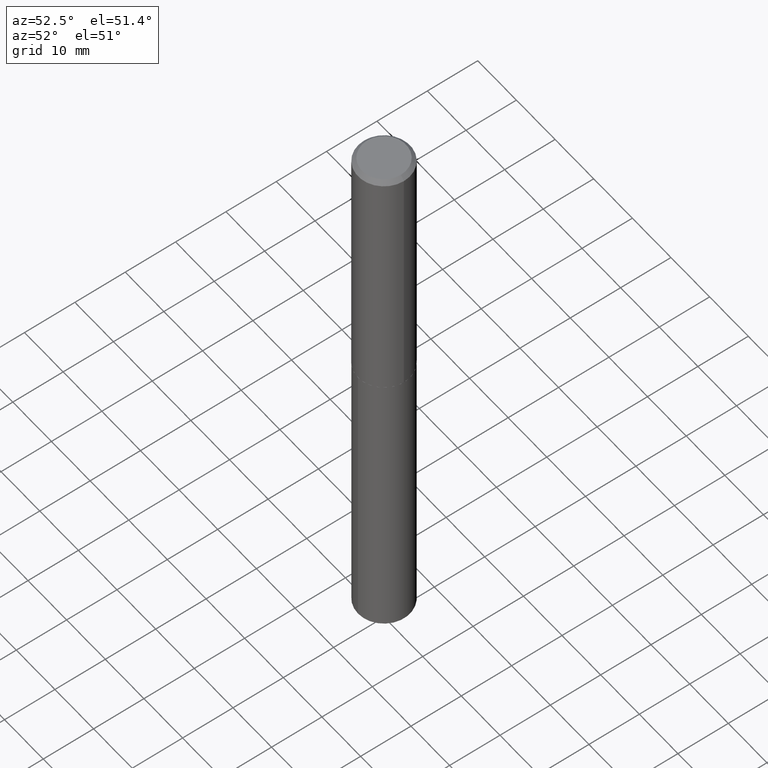
[diagram: clean part render]
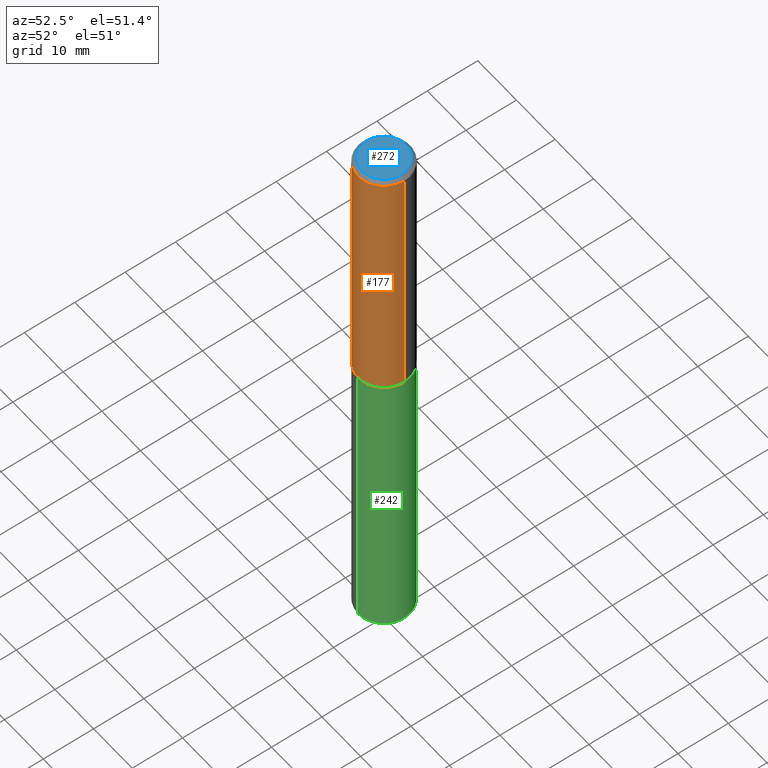
[diagram: same view with three faces highlighted in distinct colors, each labeled with its STEP entity id]
A machine part, auxiliary view with three faces highlighted in distinct colors.
Their STEP definitions:

[orange] entity #177 — the highlighted cylindrical surface (edge-blend (fillet) strip) has radius 5.1587 mm, axis along (-0, 0, 1).
#3 = EDGE_CURVE ( 'NONE', #246, #102, #108, .T. ) ;
#40 = ORIENTED_EDGE ( 'NONE', *, *, #230, .F. ) ;
#58 = CYLINDRICAL_SURFACE ( 'NONE', #233, 0.2031000000000001415 ) ;
#60 = CARTESIAN_POINT ( 'NONE',  ( -0.2031000000000002526, -5.647038858460012326E-15, -2.030700000000000394 ) ) ;
#66 = CARTESIAN_POINT ( 'NONE',  ( 0.000000000000000000, 0.000000000000000000, 0.000000000000000000 ) ) ;
#67 = CARTESIAN_POINT ( 'NONE',  ( -0.2031000000000000028, -2.156517676985048373E-15, -0.03125000000000020123 ) ) ;
#87 = DIRECTION ( 'NONE',  ( -2.445468806185136597E-29, 3.491481338843145583E-15, 1.000000000000000000 ) ) ;
#89 = DIRECTION ( 'NONE',  ( 1.000000000000000000, -6.982962677686266711E-15, 4.876176775795936353E-29 ) ) ;
#90 = FACE_OUTER_BOUND ( 'NONE', #280, .T. ) ;
#97 = CIRCLE ( 'NONE', #128, 0.2031000000000002526 ) ;
#102 = VERTEX_POINT ( 'NONE', #202 ) ;
#108 = LINE ( 'NONE', #261, #159 ) ;
#124 = VECTOR ( 'NONE', #271, 39.37007874015748143 ) ;
#128 = AXIS2_PLACEMENT_3D ( 'NONE', #332, #359, #335 ) ;
#159 = VECTOR ( 'NONE', #255, 39.37007874015748143 ) ;
#160 = CIRCLE ( 'NONE', #305, 0.2031000000000000028 ) ;
#177 = ADVANCED_FACE ( 'NONE', ( #90 ), #58, .T. ) ;
#181 = CARTESIAN_POINT ( 'NONE',  ( 0.2031000000000002526, -8.508390874626859359E-15, -2.030700000000000394 ) ) ;
#202 = CARTESIAN_POINT ( 'NONE',  ( 0.2031000000000000028, -1.527348511676929876E-15, -0.03125000000000020123 ) ) ;
#203 = EDGE_CURVE ( 'NONE', #222, #246, #97, .T. ) ;
#211 = LINE ( 'NONE', #270, #124 ) ;
#214 = EDGE_CURVE ( 'NONE', #222, #354, #211, .T. ) ;
#222 = VERTEX_POINT ( 'NONE', #60 ) ;
#230 = EDGE_CURVE ( 'NONE', #354, #102, #160, .T. ) ;
#233 = AXIS2_PLACEMENT_3D ( 'NONE', #66, #87, #89 ) ;
#238 = DIRECTION ( 'NONE',  ( 1.000000000000000000, -6.982962677686266711E-15, 0.000000000000000000 ) ) ;
#241 = CARTESIAN_POINT ( 'NONE',  ( 7.642090019328601786E-31, -1.091087918388490144E-16, -0.03125000000000020123 ) ) ;
#246 = VERTEX_POINT ( 'NONE', #181 ) ;
#255 = DIRECTION ( 'NONE',  ( -2.445468806185136877E-29, 3.491481338843145188E-15, 1.000000000000000000 ) ) ;
#261 = CARTESIAN_POINT ( 'NONE',  ( 0.2031000000000001415, -1.418239719838081761E-15, 9.903515031641553151E-30 ) ) ;
#270 = CARTESIAN_POINT ( 'NONE',  ( -0.2031000000000001415, 1.443112296328764483E-15, -9.990357168307721209E-30 ) ) ;
#271 = DIRECTION ( 'NONE',  ( -2.445468806185136877E-29, 3.491481338843145188E-15, 1.000000000000000000 ) ) ;
#276 = ORIENTED_EDGE ( 'NONE', *, *, #3, .T. ) ;
#280 = EDGE_LOOP ( 'NONE', ( #373, #376, #276, #40 ) ) ;
#305 = AXIS2_PLACEMENT_3D ( 'NONE', #241, #362, #238 ) ;
#332 = CARTESIAN_POINT ( 'NONE',  ( 4.966013504720158200E-29, -7.090151154788777795E-15, -2.030700000000000394 ) ) ;
#335 = DIRECTION ( 'NONE',  ( 1.000000000000000000, -6.982962677686265922E-15, 0.000000000000000000 ) ) ;
#354 = VERTEX_POINT ( 'NONE', #67 ) ;
#359 = DIRECTION ( 'NONE',  ( -2.445468806185136597E-29, 3.491481338843145583E-15, 1.000000000000000000 ) ) ;
#362 = DIRECTION ( 'NONE',  ( -2.445468806185136597E-29, 3.491481338843145583E-15, 1.000000000000000000 ) ) ;
#373 = ORIENTED_EDGE ( 'NONE', *, *, #214, .F. ) ;
#376 = ORIENTED_EDGE ( 'NONE', *, *, #203, .T. ) ;

[blue] entity #272 — the highlighted planar face has unit normal (0, -0, -1).
#17 = CARTESIAN_POINT ( 'NONE',  ( -3.294319100500156682E-48, 4.703414590486523613E-34, 1.347111479062046400E-19 ) ) ;
#27 = DIRECTION ( 'NONE',  ( -1.000000000000000000, 6.982962677686265922E-15, -4.876176775795935793E-29 ) ) ;
#29 = EDGE_CURVE ( 'NONE', #200, #53, #267, .T. ) ;
#46 = DIRECTION ( 'NONE',  ( 1.000000000000000000, -6.982962677686267499E-15, 4.876176101062914383E-29 ) ) ;
#53 = VERTEX_POINT ( 'NONE', #114 ) ;
#104 = ORIENTED_EDGE ( 'NONE', *, *, #29, .T. ) ;
#114 = CARTESIAN_POINT ( 'NONE',  ( 0.1718500000000000028, -1.340726258051642620E-15, 1.347111479150883290E-19 ) ) ;
#120 = DIRECTION ( 'NONE',  ( -2.445468806185136597E-29, 3.491481338843145583E-15, 1.000000000000000000 ) ) ;
#134 = AXIS2_PLACEMENT_3D ( 'NONE', #17, #232, #46 ) ;
#135 = AXIS2_PLACEMENT_3D ( 'NONE', #299, #120, #326 ) ;
#149 = AXIS2_PLACEMENT_3D ( 'NONE', #301, #153, #27 ) ;
#151 = CARTESIAN_POINT ( 'NONE',  ( -0.1718500000000000028, 1.254576532079808505E-15, 1.347111478976217814E-19 ) ) ;
#153 = DIRECTION ( 'NONE',  ( 2.438088387897960049E-29, -3.491481338843145188E-15, -1.000000000000000000 ) ) ;
#158 = EDGE_LOOP ( 'NONE', ( #104, #174 ) ) ;
#174 = ORIENTED_EDGE ( 'NONE', *, *, #182, .T. ) ;
#182 = EDGE_CURVE ( 'NONE', #53, #200, #268, .T. ) ;
#200 = VERTEX_POINT ( 'NONE', #151 ) ;
#232 = DIRECTION ( 'NONE',  ( -2.445468806185136597E-29, 3.491481338843145583E-15, 1.000000000000000000 ) ) ;
#267 = CIRCLE ( 'NONE', #134, 0.1718500000000000028 ) ;
#268 = CIRCLE ( 'NONE', #135, 0.1718500000000000028 ) ;
#272 = ADVANCED_FACE ( 'NONE', ( #357 ), #364, .F. ) ;
#299 = CARTESIAN_POINT ( 'NONE',  ( -3.294319100500156682E-48, 4.703414590486523613E-34, 1.347111479062046400E-19 ) ) ;
#301 = CARTESIAN_POINT ( 'NONE',  ( -1.647159550250078341E-48, 2.351707295243261806E-34, 6.735557395310232002E-20 ) ) ;
#326 = DIRECTION ( 'NONE',  ( 1.000000000000000000, -6.982962677686267499E-15, 4.876176101062914383E-29 ) ) ;
#357 = FACE_OUTER_BOUND ( 'NONE', #158, .T. ) ;
#364 = PLANE ( 'NONE',  #149 ) ;

[green] entity #242 — the highlighted cylindrical surface (edge-blend (fillet) strip) has radius 5.1587 mm, axis along (-0, 0, 1).
#4 = DIRECTION ( 'NONE',  ( -2.445399436939998011E-29, 3.491580679550436162E-15, 1.000000000000000000 ) ) ;
#10 = VERTEX_POINT ( 'NONE', #23 ) ;
#18 = EDGE_CURVE ( 'NONE', #33, #188, #166, .T. ) ;
#20 = DIRECTION ( 'NONE',  ( -2.445399436939998011E-29, 3.491580679550436162E-15, 1.000000000000000000 ) ) ;
#23 = CARTESIAN_POINT ( 'NONE',  ( -1.418239719837973885E-15, -0.2031000000000152683, -4.377965208275502285 ) ) ;
#28 = AXIS2_PLACEMENT_3D ( 'NONE', #313, #98, #306 ) ;
#33 = VERTEX_POINT ( 'NONE', #289 ) ;
#63 = CARTESIAN_POINT ( 'NONE',  ( 1.443112296328870782E-15, 0.2030999999999928973, -2.031200000000001449 ) ) ;
#64 = AXIS2_PLACEMENT_3D ( 'NONE', #240, #178, #146 ) ;
#86 = LINE ( 'NONE', #321, #297 ) ;
#98 = DIRECTION ( 'NONE',  ( -2.445399436939998011E-29, 3.491580679550436162E-15, 1.000000000000000000 ) ) ;
#106 = EDGE_CURVE ( 'NONE', #10, #368, #86, .T. ) ;
#110 = DIRECTION ( 'NONE',  ( -2.445399436939998011E-29, 3.491580679550436162E-15, 1.000000000000000000 ) ) ;
#115 = DIRECTION ( 'NONE',  ( -6.982962677686266711E-15, -1.000000000000000000, 4.035225987687242674E-15 ) ) ;
#129 = EDGE_LOOP ( 'NONE', ( #161, #338, #282, #348 ) ) ;
#145 = CARTESIAN_POINT ( 'NONE',  ( 1.443112296328812998E-15, 0.2030999999999928973, -2.031200000000001449 ) ) ;
#146 = DIRECTION ( 'NONE',  ( -6.982962677686266711E-15, -1.000000000000000000, 2.690150658458161520E-15 ) ) ;
#161 = ORIENTED_EDGE ( 'NONE', *, *, #300, .T. ) ;
#166 = LINE ( 'NONE', #145, #336 ) ;
#176 = CARTESIAN_POINT ( 'NONE',  ( 4.967236239123250441E-29, -7.091896895458199299E-15, -2.031200000000000561 ) ) ;
#178 = DIRECTION ( 'NONE',  ( -2.445399436939998011E-29, 3.491580679550436162E-15, 1.000000000000000000 ) ) ;
#183 = FACE_OUTER_BOUND ( 'NONE', #129, .T. ) ;
#188 = VERTEX_POINT ( 'NONE', #63 ) ;
#212 = CYLINDRICAL_SURFACE ( 'NONE', #360, 0.2031000000000000028 ) ;
#240 = CARTESIAN_POINT ( 'NONE',  ( 1.070601455807054017E-28, -1.528581695611409890E-14, -4.377965208275502285 ) ) ;
#242 = ADVANCED_FACE ( 'NONE', ( #183 ), #212, .T. ) ;
#262 = CIRCLE ( 'NONE', #28, 0.2031000000000000028 ) ;
#282 = ORIENTED_EDGE ( 'NONE', *, *, #355, .F. ) ;
#289 = CARTESIAN_POINT ( 'NONE',  ( 1.443112296328870388E-15, 0.2030999999999847094, -4.377965208275503173 ) ) ;
#297 = VECTOR ( 'NONE', #110, 39.37007874015748143 ) ;
#300 = EDGE_CURVE ( 'NONE', #10, #33, #371, .T. ) ;
#306 = DIRECTION ( 'NONE',  ( -6.982962677686266711E-15, -1.000000000000000000, 4.035225987687242674E-15 ) ) ;
#313 = CARTESIAN_POINT ( 'NONE',  ( 4.967236239123250441E-29, -7.091896895458199299E-15, -2.031200000000000561 ) ) ;
#321 = CARTESIAN_POINT ( 'NONE',  ( -1.418239719838031077E-15, -0.2031000000000071082, -2.031199999999999672 ) ) ;
#336 = VECTOR ( 'NONE', #20, 39.37007874015748143 ) ;
#338 = ORIENTED_EDGE ( 'NONE', *, *, #18, .T. ) ;
#348 = ORIENTED_EDGE ( 'NONE', *, *, #106, .F. ) ;
#355 = EDGE_CURVE ( 'NONE', #368, #188, #262, .T. ) ;
#360 = AXIS2_PLACEMENT_3D ( 'NONE', #176, #4, #115 ) ;
#367 = CARTESIAN_POINT ( 'NONE',  ( -1.418239719838031077E-15, -0.2031000000000071082, -2.031199999999999672 ) ) ;
#368 = VERTEX_POINT ( 'NONE', #367 ) ;
#371 = CIRCLE ( 'NONE', #64, 0.2031000000000000028 ) ;